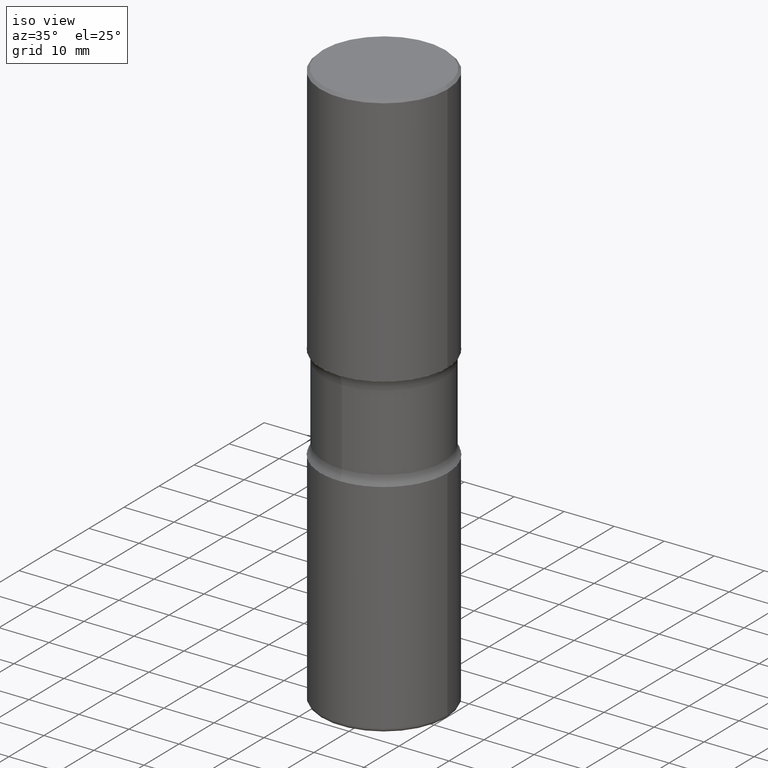
[diagram: clean part render]
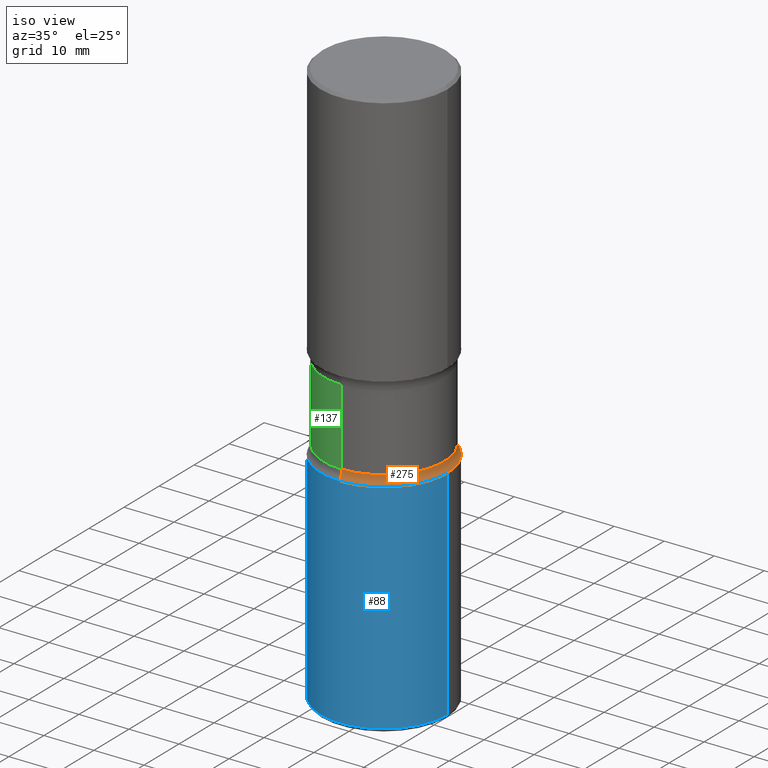
[diagram: same view with three faces highlighted in distinct colors, each labeled with its STEP entity id]
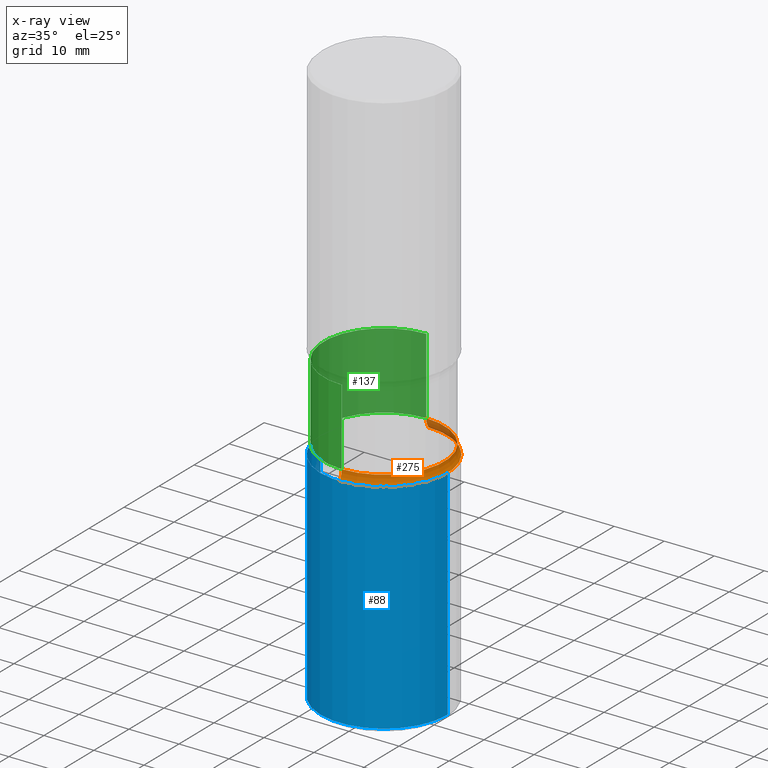
[diagram: x-ray of the same camera — body ghosted, the three highlighted faces saturated]
A machine part, iso view with three faces highlighted in distinct colors.
The next image is the same camera in x-ray (body ghosted, the three faces saturated) — at least one of them is partly hidden behind the body in this view.
Their STEP definitions:

[orange] entity #275 — the highlighted toroidal blend (fillet) surface has major radius 15.24 mm and minor (blend) radius 3.175 mm.
#3 = AXIS2_PLACEMENT_3D ( 'NONE', #280, #151, #99 ) ;
#46 = CARTESIAN_POINT ( 'NONE',  ( -4.116298798662852831E-15, -0.6000000000000094147, -2.674999999999998490 ) ) ;
#52 = CIRCLE ( 'NONE', #512, 0.1250000000000002498 ) ;
#57 = FACE_OUTER_BOUND ( 'NONE', #341, .T. ) ;
#70 = CARTESIAN_POINT ( 'NONE',  ( 6.725039217009130125E-29, -9.601573681818657748E-15, -2.750000000000002220 ) ) ;
#76 = CIRCLE ( 'NONE', #434, 0.1250000000000002498 ) ;
#99 = DIRECTION ( 'NONE',  ( 6.982962677686265133E-15, 1.000000000000000000, -3.450755360418016739E-15 ) ) ;
#106 = DIRECTION ( 'NONE',  ( 2.420803642536714607E-29, -3.526803257041618016E-15, -1.000000000000000000 ) ) ;
#112 = VERTEX_POINT ( 'NONE', #391 ) ;
#116 = AXIS2_PLACEMENT_3D ( 'NONE', #70, #497, #407 ) ;
#122 = ORIENTED_EDGE ( 'NONE', *, *, #205, .F. ) ;
#151 = DIRECTION ( 'NONE',  ( 2.420803642536714607E-29, -3.526803257041618016E-15, -1.000000000000000000 ) ) ;
#155 = TOROIDAL_SURFACE ( 'NONE', #493, 0.5999999999999999778, 0.1250000000000001943 ) ;
#162 = ORIENTED_EDGE ( 'NONE', *, *, #245, .T. ) ;
#169 = ORIENTED_EDGE ( 'NONE', *, *, #386, .F. ) ;
#205 = EDGE_CURVE ( 'NONE', #213, #462, #76, .T. ) ;
#213 = VERTEX_POINT ( 'NONE', #219 ) ;
#219 = CARTESIAN_POINT ( 'NONE',  ( -3.430248998885702278E-15, -0.5000000000000102141, -2.750000000000000444 ) ) ;
#232 = DIRECTION ( 'NONE',  ( -6.982962677686264344E-15, -1.000000000000000000, 0.000000000000000000 ) ) ;
#245 = EDGE_CURVE ( 'NONE', #533, #462, #348, .T. ) ;
#275 = ADVANCED_FACE ( 'NONE', ( #57 ), #155, .F. ) ;
#280 = CARTESIAN_POINT ( 'NONE',  ( 6.543478943818874561E-29, -9.337063437540531752E-15, -2.675000000000000711 ) ) ;
#306 = DIRECTION ( 'NONE',  ( 1.000000000000000000, -6.860497997771530774E-15, 4.840366310883528109E-29 ) ) ;
#320 = CARTESIAN_POINT ( 'NONE',  ( 3.316907271901041374E-15, 0.4749999999999906519, -2.675000000000002487 ) ) ;
#325 = DIRECTION ( 'NONE',  ( -1.000000000000000000, 6.982962677686265922E-15, -4.883557194083112340E-29 ) ) ;
#340 = ORIENTED_EDGE ( 'NONE', *, *, #344, .T. ) ;
#341 = EDGE_LOOP ( 'NONE', ( #122, #169, #340, #162 ) ) ;
#344 = EDGE_CURVE ( 'NONE', #112, #533, #52, .T. ) ;
#348 = CIRCLE ( 'NONE', #3, 0.4749999999999999778 ) ;
#355 = CIRCLE ( 'NONE', #116, 0.5000000000000004441 ) ;
#367 = DIRECTION ( 'NONE',  ( 6.982962677686265133E-15, 1.000000000000000000, -3.526803257041617622E-15 ) ) ;
#386 = EDGE_CURVE ( 'NONE', #112, #213, #355, .T. ) ;
#391 = CARTESIAN_POINT ( 'NONE',  ( 3.491481338843205142E-15, 0.4999999999999909517, -2.750000000000003553 ) ) ;
#407 = DIRECTION ( 'NONE',  ( 6.982962677686266711E-15, 1.000000000000000000, -3.278217592397113101E-15 ) ) ;
#434 = AXIS2_PLACEMENT_3D ( 'NONE', #46, #306, #476 ) ;
#462 = VERTEX_POINT ( 'NONE', #534 ) ;
#476 = DIRECTION ( 'NONE',  ( 6.860497997771528407E-15, 1.000000000000000000, 0.000000000000000000 ) ) ;
#485 = CARTESIAN_POINT ( 'NONE',  ( 6.541629056545242414E-29, -9.339712581405418013E-15, -2.675000000000000711 ) ) ;
#491 = CARTESIAN_POINT ( 'NONE',  ( 4.189777606611825502E-15, 0.5999999999999906519, -2.675000000000002931 ) ) ;
#493 = AXIS2_PLACEMENT_3D ( 'NONE', #485, #106, #367 ) ;
#497 = DIRECTION ( 'NONE',  ( 2.420803642536714607E-29, -3.526803257041618016E-15, -1.000000000000000000 ) ) ;
#512 = AXIS2_PLACEMENT_3D ( 'NONE', #491, #325, #232 ) ;
#533 = VERTEX_POINT ( 'NONE', #320 ) ;
#534 = CARTESIAN_POINT ( 'NONE',  ( -3.344492773913557423E-15, -0.4750000000000094147, -2.674999999999999378 ) ) ;

[blue] entity #88 — the highlighted cylindrical surface (partial cylindrical patch) has radius 12.7 mm, axis along (-0, 0, 1).
#19 = DIRECTION ( 'NONE',  ( -2.445468806185136877E-29, 3.491481338843145188E-15, 1.000000000000000000 ) ) ;
#21 = ORIENTED_EDGE ( 'NONE', *, *, #557, .F. ) ;
#24 = LINE ( 'NONE', #144, #86 ) ;
#28 = CYLINDRICAL_SURFACE ( 'NONE', #379, 0.5000000000000004441 ) ;
#40 = AXIS2_PLACEMENT_3D ( 'NONE', #202, #374, #330 ) ;
#86 = VECTOR ( 'NONE', #19, 39.37007874015748143 ) ;
#88 = ADVANCED_FACE ( 'NONE', ( #120 ), #28, .T. ) ;
#101 = EDGE_CURVE ( 'NONE', #259, #552, #517, .T. ) ;
#102 = CARTESIAN_POINT ( 'NONE',  ( -0.5000000000000005551, -9.051533954423258130E-15, -2.750000000000002220 ) ) ;
#108 = CIRCLE ( 'NONE', #40, 0.5000000000000004441 ) ;
#120 = FACE_OUTER_BOUND ( 'NONE', #358, .T. ) ;
#144 = CARTESIAN_POINT ( 'NONE',  ( -0.5000000000000004441, 3.552713678800504085E-15, -2.459467545127455133E-29 ) ) ;
#180 = CIRCLE ( 'NONE', #278, 0.5000000000000004441 ) ;
#195 = ORIENTED_EDGE ( 'NONE', *, *, #257, .T. ) ;
#202 = CARTESIAN_POINT ( 'NONE',  ( 6.725039217009130125E-29, -9.601573681818657748E-15, -2.750000000000002220 ) ) ;
#222 = CARTESIAN_POINT ( 'NONE',  ( 1.093124556364756229E-28, -1.560692158462886353E-14, -4.470000000000000639 ) ) ;
#240 = VERTEX_POINT ( 'NONE', #481 ) ;
#255 = DIRECTION ( 'NONE',  ( 1.000000000000000000, -6.982962677686266711E-15, 4.876176775795935232E-29 ) ) ;
#257 = EDGE_CURVE ( 'NONE', #240, #259, #180, .T. ) ;
#259 = VERTEX_POINT ( 'NONE', #269 ) ;
#269 = CARTESIAN_POINT ( 'NONE',  ( 0.5000000000000002220, -1.909840292347200004E-14, -4.470000000000000639 ) ) ;
#278 = AXIS2_PLACEMENT_3D ( 'NONE', #222, #351, #528 ) ;
#283 = ORIENTED_EDGE ( 'NONE', *, *, #293, .F. ) ;
#293 = EDGE_CURVE ( 'NONE', #240, #322, #24, .T. ) ;
#302 = CARTESIAN_POINT ( 'NONE',  ( 0.5000000000000004441, -3.491481338843136511E-15, 2.438088387897969858E-29 ) ) ;
#322 = VERTEX_POINT ( 'NONE', #102 ) ;
#330 = DIRECTION ( 'NONE',  ( 1.000000000000000000, -6.982962677686268288E-15, 0.000000000000000000 ) ) ;
#351 = DIRECTION ( 'NONE',  ( -2.445468806185136597E-29, 3.491481338843145583E-15, 1.000000000000000000 ) ) ;
#358 = EDGE_LOOP ( 'NONE', ( #283, #195, #426, #21 ) ) ;
#374 = DIRECTION ( 'NONE',  ( -2.445468806185136597E-29, 3.491481338843145583E-15, 1.000000000000000000 ) ) ;
#379 = AXIS2_PLACEMENT_3D ( 'NONE', #382, #463, #255 ) ;
#382 = CARTESIAN_POINT ( 'NONE',  ( 0.000000000000000000, 0.000000000000000000, 0.000000000000000000 ) ) ;
#426 = ORIENTED_EDGE ( 'NONE', *, *, #101, .T. ) ;
#437 = DIRECTION ( 'NONE',  ( -2.445468806185136877E-29, 3.491481338843145188E-15, 1.000000000000000000 ) ) ;
#463 = DIRECTION ( 'NONE',  ( -2.445468806185136597E-29, 3.491481338843145583E-15, 1.000000000000000000 ) ) ;
#481 = CARTESIAN_POINT ( 'NONE',  ( -0.5000000000000002220, -1.205420790582835944E-14, -4.470000000000000639 ) ) ;
#502 = VECTOR ( 'NONE', #437, 39.37007874015748143 ) ;
#517 = LINE ( 'NONE', #302, #502 ) ;
#528 = DIRECTION ( 'NONE',  ( 1.000000000000000000, -6.982962677686268288E-15, 0.000000000000000000 ) ) ;
#547 = CARTESIAN_POINT ( 'NONE',  ( 0.5000000000000004441, -1.309305502066179584E-14, -2.750000000000002220 ) ) ;
#552 = VERTEX_POINT ( 'NONE', #547 ) ;
#557 = EDGE_CURVE ( 'NONE', #322, #552, #108, .T. ) ;

[green] entity #137 — the highlighted cylindrical surface (partial cylindrical patch) has radius 12.065 mm, axis along (0, -0, -1).
#6 = DIRECTION ( 'NONE',  ( 2.420803642536714607E-29, -3.526803257041618016E-15, -1.000000000000000000 ) ) ;
#7 = DIRECTION ( 'NONE',  ( 6.982962677686265133E-15, 1.000000000000000000, -3.450755360418016739E-15 ) ) ;
#8 = AXIS2_PLACEMENT_3D ( 'NONE', #91, #6, #7 ) ;
#33 = ORIENTED_EDGE ( 'NONE', *, *, #432, .F. ) ;
#37 = EDGE_LOOP ( 'NONE', ( #33, #227, #384, #285 ) ) ;
#47 = EDGE_CURVE ( 'NONE', #524, #533, #466, .T. ) ;
#91 = CARTESIAN_POINT ( 'NONE',  ( 1.096144559144837880E-28, -1.577347938164148721E-14, -4.500000000000000888 ) ) ;
#129 = LINE ( 'NONE', #160, #279 ) ;
#133 = FACE_OUTER_BOUND ( 'NONE', #37, .T. ) ;
#137 = ADVANCED_FACE ( 'NONE', ( #133 ), #433, .T. ) ;
#160 = CARTESIAN_POINT ( 'NONE',  ( -3.258736548941367209E-15, -0.4750000000000157430, -4.499999999999999112 ) ) ;
#165 = CARTESIAN_POINT ( 'NONE',  ( 3.316907271901085550E-15, 0.4749999999999842126, -4.500000000000002665 ) ) ;
#174 = EDGE_CURVE ( 'NONE', #403, #524, #229, .T. ) ;
#176 = CARTESIAN_POINT ( 'NONE',  ( 6.543478943818874561E-29, -9.337063437540531752E-15, -2.675000000000000711 ) ) ;
#177 = CARTESIAN_POINT ( 'NONE',  ( 5.090996758296847983E-29, -7.220981483315563230E-15, -2.075000000000001954 ) ) ;
#183 = DIRECTION ( 'NONE',  ( 6.982962677686265133E-15, 1.000000000000000000, -3.450755360418016739E-15 ) ) ;
#227 = ORIENTED_EDGE ( 'NONE', *, *, #174, .T. ) ;
#229 = CIRCLE ( 'NONE', #342, 0.4749999999999999778 ) ;
#231 = CARTESIAN_POINT ( 'NONE',  ( -3.344492773913572412E-15, -0.4750000000000072498, -2.075000000000000178 ) ) ;
#235 = EDGE_CURVE ( 'NONE', #462, #533, #304, .T. ) ;
#264 = DIRECTION ( 'NONE',  ( 2.420803642536714607E-29, -3.526803257041618016E-15, -1.000000000000000000 ) ) ;
#279 = VECTOR ( 'NONE', #362, 39.37007874015748143 ) ;
#285 = ORIENTED_EDGE ( 'NONE', *, *, #235, .F. ) ;
#304 = CIRCLE ( 'NONE', #472, 0.4749999999999999778 ) ;
#311 = DIRECTION ( 'NONE',  ( 2.420803642536714607E-29, -3.526803257041618016E-15, -1.000000000000000000 ) ) ;
#320 = CARTESIAN_POINT ( 'NONE',  ( 3.316907271901041374E-15, 0.4749999999999906519, -2.675000000000002487 ) ) ;
#342 = AXIS2_PLACEMENT_3D ( 'NONE', #177, #264, #347 ) ;
#347 = DIRECTION ( 'NONE',  ( 6.982962677686265133E-15, 1.000000000000000000, -3.450755360418016739E-15 ) ) ;
#362 = DIRECTION ( 'NONE',  ( 2.420803642536714607E-29, -3.526803257041618016E-15, -1.000000000000000000 ) ) ;
#384 = ORIENTED_EDGE ( 'NONE', *, *, #47, .T. ) ;
#403 = VERTEX_POINT ( 'NONE', #231 ) ;
#432 = EDGE_CURVE ( 'NONE', #403, #462, #129, .T. ) ;
#433 = CYLINDRICAL_SURFACE ( 'NONE', #8, 0.4749999999999999778 ) ;
#462 = VERTEX_POINT ( 'NONE', #534 ) ;
#466 = LINE ( 'NONE', #165, #550 ) ;
#472 = AXIS2_PLACEMENT_3D ( 'NONE', #176, #311, #183 ) ;
#524 = VERTEX_POINT ( 'NONE', #544 ) ;
#533 = VERTEX_POINT ( 'NONE', #320 ) ;
#534 = CARTESIAN_POINT ( 'NONE',  ( -3.344492773913557423E-15, -0.4750000000000094147, -2.674999999999999378 ) ) ;
#544 = CARTESIAN_POINT ( 'NONE',  ( 3.316907271901027175E-15, 0.4749999999999927613, -2.075000000000003286 ) ) ;
#550 = VECTOR ( 'NONE', #558, 39.37007874015748143 ) ;
#558 = DIRECTION ( 'NONE',  ( 2.420803642536714607E-29, -3.526803257041618016E-15, -1.000000000000000000 ) ) ;